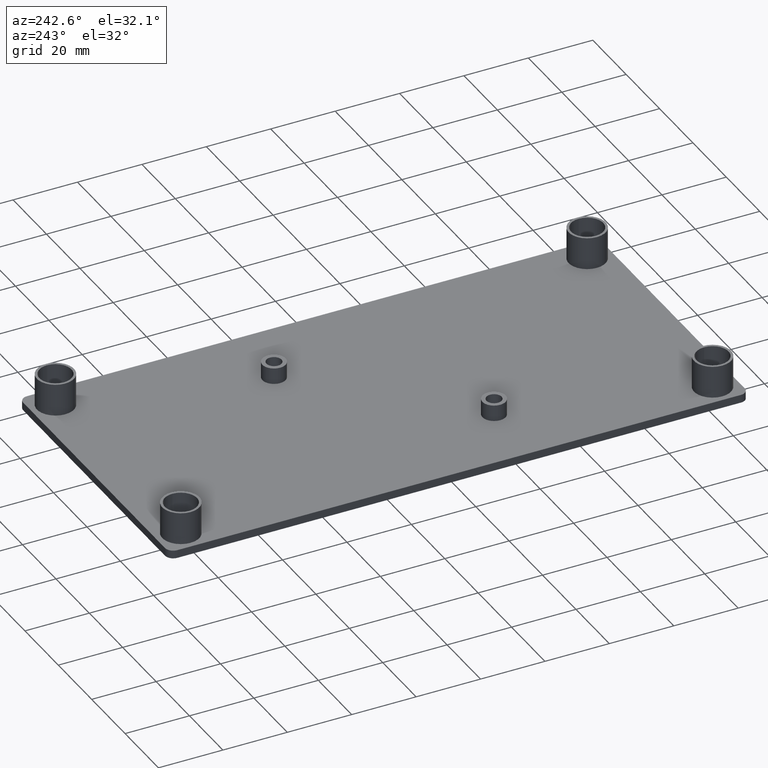
[diagram: clean part render]
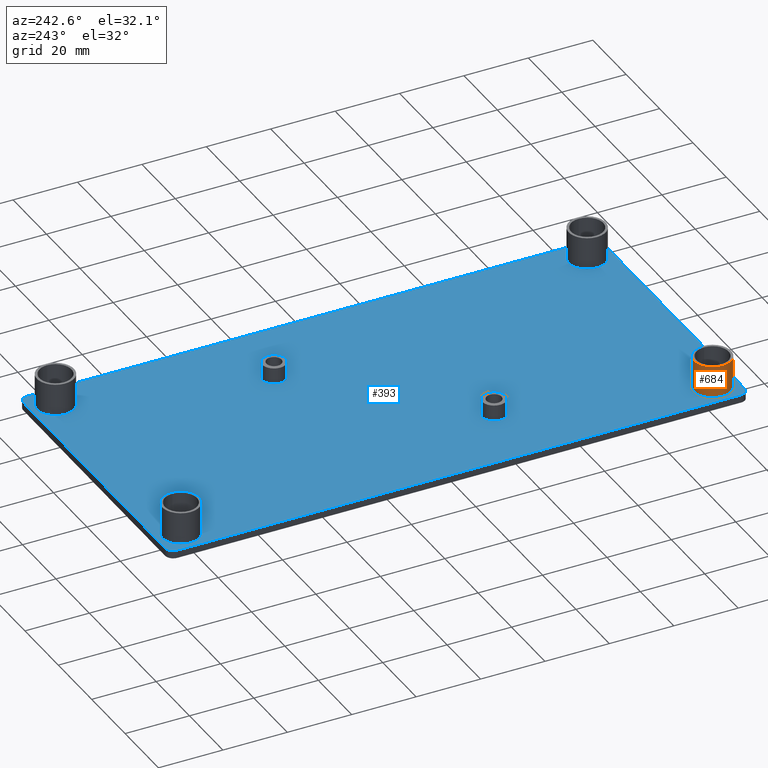
[diagram: same view with the hole feature highlighted: cylindrical wall and planar end face, labeled with their STEP entity ids]
A machine part, auxiliary view. The highlighted faces form one hole feature of diameter 11.5 mm: the cylindrical wall (entity #684, orange) and its adjacent planar end face (entity #393, blue) — they share a circular edge in the B-rep.
Wall:
#293=CARTESIAN_POINT('',(-88.299998666665346,-82.550044500000070,0.0));
#294=VERTEX_POINT('',#293);
#295=CARTESIAN_POINT('',(-76.799998666665346,-82.550044500000070,0.0));
#296=VERTEX_POINT('',#295);
#297=CARTESIAN_POINT('',(-82.549998666665346,-82.550044500000070,0.0));
#298=DIRECTION('',(0.0,0.0,1.0));
#299=DIRECTION('',(1.0,0.0,0.0));
#300=AXIS2_PLACEMENT_3D('',#297,#298,#299);
#301=CIRCLE('',#300,5.750000000000000);
#302=EDGE_CURVE('',#294,#296,#301,.T.);
#304=CARTESIAN_POINT('',(-82.549998666665346,-82.550044500000070,0.0));
#305=DIRECTION('',(0.0,0.0,1.0));
#306=DIRECTION('',(1.0,0.0,0.0));
#307=AXIS2_PLACEMENT_3D('',#304,#305,#306);
#308=CIRCLE('',#307,5.750000000000000);
#309=EDGE_CURVE('',#296,#294,#308,.T.);
#650=CARTESIAN_POINT('',(-82.549998666665346,-82.550044500000070,0.0));
#651=DIRECTION('',(0.0,0.0,1.0));
#652=DIRECTION('',(1.0,0.0,0.0));
#653=AXIS2_PLACEMENT_3D('',#650,#651,#652);
#654=CYLINDRICAL_SURFACE('',#653,5.750000000000000);
#655=CARTESIAN_POINT('',(-88.299998666665346,-82.550044500000070,10.0));
#656=VERTEX_POINT('',#655);
#657=CARTESIAN_POINT('',(-76.799998666665346,-82.550044500000070,10.0));
#658=VERTEX_POINT('',#657);
#659=CARTESIAN_POINT('',(-82.549998666665346,-82.550044500000070,10.0));
#660=DIRECTION('',(0.0,0.0,1.0));
#661=DIRECTION('',(1.0,0.0,0.0));
#662=AXIS2_PLACEMENT_3D('',#659,#660,#661);
#663=CIRCLE('',#662,5.750000000000000);
#664=EDGE_CURVE('',#656,#658,#663,.T.);
#665=ORIENTED_EDGE('',*,*,#664,.F.);
#666=CARTESIAN_POINT('',(-82.549998666665346,-82.550044500000070,10.0));
#667=DIRECTION('',(0.0,0.0,1.0));
#668=DIRECTION('',(1.0,0.0,0.0));
#669=AXIS2_PLACEMENT_3D('',#666,#667,#668);
#670=CIRCLE('',#669,5.750000000000000);
#671=EDGE_CURVE('',#658,#656,#670,.T.);
#672=ORIENTED_EDGE('',*,*,#671,.F.);
#673=CARTESIAN_POINT('',(-76.799998666665346,-82.550044500000070,0.0));
#674=DIRECTION('',(0.0,0.0,1.0));
#675=VECTOR('',#674,10.0);
#676=LINE('',#673,#675);
#677=EDGE_CURVE('',#296,#658,#676,.T.);
#678=ORIENTED_EDGE('',*,*,#677,.F.);
#679=ORIENTED_EDGE('',*,*,#309,.T.);
#680=ORIENTED_EDGE('',*,*,#302,.T.);
#681=ORIENTED_EDGE('',*,*,#677,.T.);
#682=EDGE_LOOP('',(#665,#672,#678,#679,#680,#681));
#683=FACE_OUTER_BOUND('',#682,.T.);
#684=ADVANCED_FACE('',(#683),#654,.T.);
End face:
#7=CARTESIAN_POINT('',(0.000000333334668,-87.500000499999999,0.0));
#8=VERTEX_POINT('',#7);
#25=CARTESIAN_POINT('',(-0.000000333334640,87.500000499999999,0.0));
#26=VERTEX_POINT('',#25);
#33=CARTESIAN_POINT('',(0.000000333334668,-87.500000499999999,0.0));
#34=DIRECTION('',(-3.809539E-009,1.0,0.0));
#35=VECTOR('',#34,175.000001000000000);
#36=LINE('',#33,#35);
#37=EDGE_CURVE('',#8,#26,#36,.T.);
#57=CARTESIAN_POINT('',(-2.500000333334640,90.000000499999999,0.0));
#58=VERTEX_POINT('',#57);
#65=CARTESIAN_POINT('',(-2.500000333334640,87.500000499999999,0.0));
#66=DIRECTION('',(0.0,0.0,1.0));
#67=DIRECTION('',(1.0,0.0,0.0));
#68=AXIS2_PLACEMENT_3D('',#65,#66,#67);
#69=CIRCLE('',#68,2.500000000000000);
#70=EDGE_CURVE('',#26,#58,#69,.T.);
#89=CARTESIAN_POINT('',(-87.499956333334637,90.000000499999999,0.0));
#90=VERTEX_POINT('',#89);
#97=CARTESIAN_POINT('',(-2.500000333334640,90.000000499999999,0.0));
#98=DIRECTION('',(-1.0,0.0,0.0));
#99=VECTOR('',#98,84.999955999999997);
#100=LINE('',#97,#99);
#101=EDGE_CURVE('',#58,#90,#100,.T.);
#121=CARTESIAN_POINT('',(-89.999956333334652,87.500000499999999,0.0));
#122=VERTEX_POINT('',#121);
#129=CARTESIAN_POINT('',(-87.499956333334637,87.500000499999999,0.0));
#130=DIRECTION('',(0.0,0.0,1.0));
#131=DIRECTION('',(1.0,0.0,0.0));
#132=AXIS2_PLACEMENT_3D('',#129,#130,#131);
#133=CIRCLE('',#132,2.500000000000000);
#134=EDGE_CURVE('',#90,#122,#133,.T.);
#153=CARTESIAN_POINT('',(-89.999953666665334,-87.499999500000001,0.0));
#154=VERTEX_POINT('',#153);
#161=CARTESIAN_POINT('',(-89.999956333334652,87.500000499999999,0.0));
#162=DIRECTION('',(0.000000015238110,-1.000000000000000,0.0));
#163=VECTOR('',#162,175.000000000000030);
#164=LINE('',#161,#163);
#165=EDGE_CURVE('',#122,#154,#164,.T.);
#185=CARTESIAN_POINT('',(-87.499953666665334,-89.999999500000001,0.0));
#186=VERTEX_POINT('',#185);
#193=CARTESIAN_POINT('',(-87.499953666665334,-87.499999500000001,0.0));
#194=DIRECTION('',(0.0,0.0,1.0));
#195=DIRECTION('',(1.0,0.0,0.0));
#196=AXIS2_PLACEMENT_3D('',#193,#194,#195);
#197=CIRCLE('',#196,2.500000000000000);
#198=EDGE_CURVE('',#154,#186,#197,.T.);
#217=CARTESIAN_POINT('',(-2.499999666665318,-90.000000499999999,0.0));
#218=VERTEX_POINT('',#217);
#225=CARTESIAN_POINT('',(-87.499953666665334,-89.999999500000001,0.0));
#226=DIRECTION('',(1.0,-0.000000011764712,0.0));
#227=VECTOR('',#226,84.999954000000017);
#228=LINE('',#225,#227);
#229=EDGE_CURVE('',#186,#218,#228,.T.);
#248=CARTESIAN_POINT('',(-2.499999666665318,-87.500000499999999,0.0));
#249=DIRECTION('',(0.0,0.0,1.0));
#250=DIRECTION('',(1.0,0.0,0.0));
#251=AXIS2_PLACEMENT_3D('',#248,#249,#250);
#252=CIRCLE('',#251,2.500000000000000);
#253=EDGE_CURVE('',#218,#8,#252,.T.);
#258=CARTESIAN_POINT('',(-99.000072002600461,-108.000120602159830,0.0));
#259=DIRECTION('',(0.0,0.0,1.0));
#260=DIRECTION('',(1.0,0.0,0.0));
#261=AXIS2_PLACEMENT_3D('',#258,#259,#260);
#262=PLANE('',#261);
#263=ORIENTED_EDGE('',*,*,#37,.T.);
#264=ORIENTED_EDGE('',*,*,#70,.T.);
#265=ORIENTED_EDGE('',*,*,#101,.T.);
#266=ORIENTED_EDGE('',*,*,#134,.T.);
#267=ORIENTED_EDGE('',*,*,#165,.T.);
#268=ORIENTED_EDGE('',*,*,#198,.T.);
#269=ORIENTED_EDGE('',*,*,#229,.T.);
#270=ORIENTED_EDGE('',*,*,#253,.T.);
#271=EDGE_LOOP('',(#263,#264,#265,#266,#267,#268,#269,#270));
#272=FACE_OUTER_BOUND('',#271,.T.);
#273=CARTESIAN_POINT('',(-13.199998666665323,-82.550044500000070,0.0));
#274=VERTEX_POINT('',#273);
#275=CARTESIAN_POINT('',(-1.699998666665323,-82.550044500000070,0.0));
#276=VERTEX_POINT('',#275);
#277=CARTESIAN_POINT('',(-7.449998666665323,-82.550044500000070,0.0));
#278=DIRECTION('',(0.0,0.0,1.0));
#279=DIRECTION('',(1.0,0.0,0.0));
#280=AXIS2_PLACEMENT_3D('',#277,#278,#279);
#281=CIRCLE('',#280,5.750000000000000);
#282=EDGE_CURVE('',#274,#276,#281,.T.);
#283=ORIENTED_EDGE('',*,*,#282,.F.);
#284=CARTESIAN_POINT('',(-7.449998666665323,-82.550044500000070,0.0));
#285=DIRECTION('',(0.0,0.0,1.0));
#286=DIRECTION('',(1.0,0.0,0.0));
#287=AXIS2_PLACEMENT_3D('',#284,#285,#286);
#288=CIRCLE('',#287,5.750000000000000);
#289=EDGE_CURVE('',#276,#274,#288,.T.);
#290=ORIENTED_EDGE('',*,*,#289,.F.);
#291=EDGE_LOOP('',(#283,#290));
#292=FACE_BOUND('',#291,.T.);
#293=CARTESIAN_POINT('',(-88.299998666665346,-82.550044500000070,0.0));
#294=VERTEX_POINT('',#293);
#295=CARTESIAN_POINT('',(-76.799998666665346,-82.550044500000070,0.0));
#296=VERTEX_POINT('',#295);
#297=CARTESIAN_POINT('',(-82.549998666665346,-82.550044500000070,0.0));
#298=DIRECTION('',(0.0,0.0,1.0));
#299=DIRECTION('',(1.0,0.0,0.0));
#300=AXIS2_PLACEMENT_3D('',#297,#298,#299);
#301=CIRCLE('',#300,5.750000000000000);
#302=EDGE_CURVE('',#294,#296,#301,.T.);
#303=ORIENTED_EDGE('',*,*,#302,.F.);
#304=CARTESIAN_POINT('',(-82.549998666665346,-82.550044500000070,0.0));
#305=DIRECTION('',(0.0,0.0,1.0));
#306=DIRECTION('',(1.0,0.0,0.0));
#307=AXIS2_PLACEMENT_3D('',#304,#305,#306);
#308=CIRCLE('',#307,5.750000000000000);
#309=EDGE_CURVE('',#296,#294,#308,.T.);
#310=ORIENTED_EDGE('',*,*,#309,.F.);
#311=EDGE_LOOP('',(#303,#310));
#312=FACE_BOUND('',#311,.T.);
#313=CARTESIAN_POINT('',(-13.200000333334643,82.550000499999953,0.0));
#314=VERTEX_POINT('',#313);
#315=CARTESIAN_POINT('',(-1.700000333334643,82.550000499999953,0.0));
#316=VERTEX_POINT('',#315);
#317=CARTESIAN_POINT('',(-7.450000333334643,82.550000499999953,0.0));
#318=DIRECTION('',(0.0,0.0,1.0));
#319=DIRECTION('',(1.0,0.0,0.0));
#320=AXIS2_PLACEMENT_3D('',#317,#318,#319);
#321=CIRCLE('',#320,5.750000000000000);
#322=EDGE_CURVE('',#314,#316,#321,.T.);
#323=ORIENTED_EDGE('',*,*,#322,.F.);
#324=CARTESIAN_POINT('',(-7.450000333334643,82.550000499999953,0.0));
#325=DIRECTION('',(0.0,0.0,1.0));
#326=DIRECTION('',(1.0,0.0,0.0));
#327=AXIS2_PLACEMENT_3D('',#324,#325,#326);
#328=CIRCLE('',#327,5.750000000000000);
#329=EDGE_CURVE('',#316,#314,#328,.T.);
#330=ORIENTED_EDGE('',*,*,#329,.F.);
#331=EDGE_LOOP('',(#323,#330));
#332=FACE_BOUND('',#331,.T.);
#333=CARTESIAN_POINT('',(-88.300000333334665,82.550045499999953,0.0));
#334=VERTEX_POINT('',#333);
#335=CARTESIAN_POINT('',(-76.800000333334665,82.550045499999953,0.0));
#336=VERTEX_POINT('',#335);
#337=CARTESIAN_POINT('',(-82.550000333334665,82.550045499999953,0.0));
#338=DIRECTION('',(0.0,0.0,1.0));
#339=DIRECTION('',(1.0,0.0,0.0));
#340=AXIS2_PLACEMENT_3D('',#337,#338,#339);
#341=CIRCLE('',#340,5.750000000000000);
#342=EDGE_CURVE('',#334,#336,#341,.T.);
#343=ORIENTED_EDGE('',*,*,#342,.F.);
#344=CARTESIAN_POINT('',(-82.550000333334665,82.550045499999953,0.0));
#345=DIRECTION('',(0.0,0.0,1.0));
#346=DIRECTION('',(1.0,0.0,0.0));
#347=AXIS2_PLACEMENT_3D('',#344,#345,#346);
#348=CIRCLE('',#347,5.750000000000000);
#349=EDGE_CURVE('',#336,#334,#348,.T.);
#350=ORIENTED_EDGE('',*,*,#349,.F.);
#351=EDGE_LOOP('',(#343,#350));
#352=FACE_BOUND('',#351,.T.);
#353=CARTESIAN_POINT('',(-71.099974999995993,-22.500000499999999,0.0));
#354=VERTEX_POINT('',#353);
#355=CARTESIAN_POINT('',(-63.899974999995997,-22.500000499999999,0.0));
#356=VERTEX_POINT('',#355);
#357=CARTESIAN_POINT('',(-67.499974999995999,-22.500000499999999,0.0));
#358=DIRECTION('',(0.0,0.0,1.0));
#359=DIRECTION('',(1.0,0.0,0.0));
#360=AXIS2_PLACEMENT_3D('',#357,#358,#359);
#361=CIRCLE('',#360,3.600000000000000);
#362=EDGE_CURVE('',#354,#356,#361,.T.);
#363=ORIENTED_EDGE('',*,*,#362,.F.);
#364=CARTESIAN_POINT('',(-67.499974999995999,-22.500000499999999,0.0));
#365=DIRECTION('',(0.0,0.0,1.0));
#366=DIRECTION('',(1.0,0.0,0.0));
#367=AXIS2_PLACEMENT_3D('',#364,#365,#366);
#368=CIRCLE('',#367,3.600000000000000);
#369=EDGE_CURVE('',#356,#354,#368,.T.);
#370=ORIENTED_EDGE('',*,*,#369,.F.);
#371=EDGE_LOOP('',(#363,#370));
#372=FACE_BOUND('',#371,.T.);
#373=CARTESIAN_POINT('',(-26.099978333334640,22.500000499999999,0.0));
#374=VERTEX_POINT('',#373);
#375=CARTESIAN_POINT('',(-18.899978333334644,22.500000499999999,0.0));
#376=VERTEX_POINT('',#375);
#377=CARTESIAN_POINT('',(-22.499978333334639,22.500000499999999,0.0));
#378=DIRECTION('',(0.0,0.0,1.0));
#379=DIRECTION('',(1.0,0.0,0.0));
#380=AXIS2_PLACEMENT_3D('',#377,#378,#379);
#381=CIRCLE('',#380,3.600000000000000);
#382=EDGE_CURVE('',#374,#376,#381,.T.);
#383=ORIENTED_EDGE('',*,*,#382,.F.);
#384=CARTESIAN_POINT('',(-22.499978333334639,22.500000499999999,0.0));
#385=DIRECTION('',(0.0,0.0,1.0));
#386=DIRECTION('',(1.0,0.0,0.0));
#387=AXIS2_PLACEMENT_3D('',#384,#385,#386);
#388=CIRCLE('',#387,3.600000000000000);
#389=EDGE_CURVE('',#376,#374,#388,.T.);
#390=ORIENTED_EDGE('',*,*,#389,.F.);
#391=EDGE_LOOP('',(#383,#390));
#392=FACE_BOUND('',#391,.T.);
#393=ADVANCED_FACE('',(#272,#292,#312,#332,#352,#372,#392),#262,.T.);